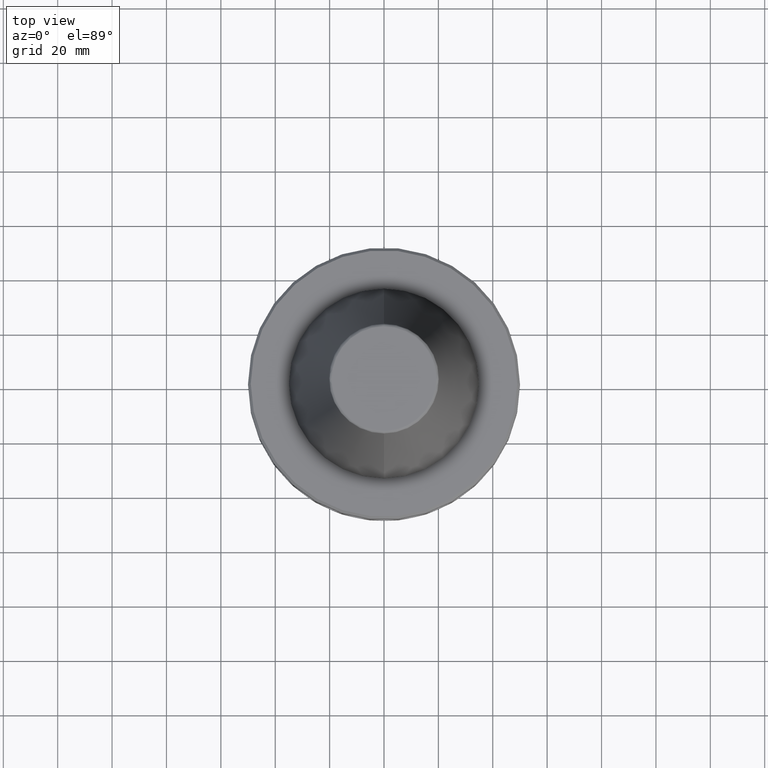
[diagram: clean part render]
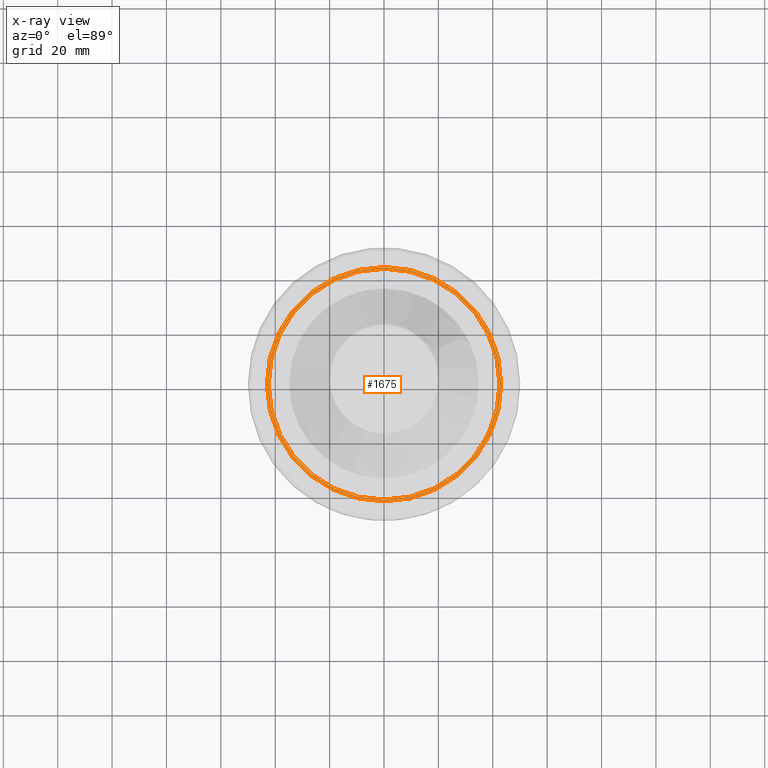
[diagram: x-ray — body ghosted, one internal face saturated and labeled with its STEP entity id]
A machine part, top view, then the same camera in x-ray: the body is ghosted and one INTERNAL B-rep face — a face not visible from any outside direction — is saturated and labeled: STEP entity #1675.
In plain terms, the highlighted planar face has unit normal (0, 0, 1).
Its self-contained STEP definition (entity closure, byte-faithful):
#119 = CARTESIAN_POINT ( 'NONE',  ( 0.0000000000000000000, 43.07217782649103600, -19.70000000000000300 ) ) ;
#258 = ORIENTED_EDGE ( 'NONE', *, *, #2107, .F. ) ;
#272 = CARTESIAN_POINT ( 'NONE',  ( 42.50000000000000000, 0.0000000000000000000, -19.70000000000001000 ) ) ;
#298 = DIRECTION ( 'NONE',  ( 1.000000000000000000, 0.0000000000000000000, 0.0000000000000000000 ) ) ;
#300 = DIRECTION ( 'NONE',  ( 0.0000000000000000000, 0.0000000000000000000, 1.000000000000000000 ) ) ;
#302 = CARTESIAN_POINT ( 'NONE',  ( 0.0000000000000000000, 0.0000000000000000000, -19.70000000000001000 ) ) ;
#315 = DIRECTION ( 'NONE',  ( 1.000000000000000000, 0.0000000000000000000, -0.0000000000000000000 ) ) ;
#673 = VERTEX_POINT ( 'NONE', #2349 ) ;
#836 = CARTESIAN_POINT ( 'NONE',  ( 43.07217782649103600, 0.0000000000000000000, -19.70000000000001000 ) ) ;
#840 = FACE_OUTER_BOUND ( 'NONE', #1923, .T. ) ;
#911 = VERTEX_POINT ( 'NONE', #836 ) ;
#965 = CARTESIAN_POINT ( 'NONE',  ( -43.07217782649103600, 5.699027233244276000E-015, -19.70000000000001000 ) ) ;
#1055 = CIRCLE ( 'NONE', #2473, 43.07217782649103600 ) ;
#1067 = DIRECTION ( 'NONE',  ( 1.000000000000000000, 0.0000000000000000000, 0.0000000000000000000 ) ) ;
#1071 = DIRECTION ( 'NONE',  ( 0.0000000000000000000, 0.0000000000000000000, 1.000000000000000000 ) ) ;
#1075 = CARTESIAN_POINT ( 'NONE',  ( 0.0000000000000000000, 0.0000000000000000000, -19.70000000000001000 ) ) ;
#1291 = EDGE_CURVE ( 'NONE', #911, #2247, #1611, .T. ) ;
#1378 = CIRCLE ( 'NONE', #1405, 42.50000000000000000 ) ;
#1405 = AXIS2_PLACEMENT_3D ( 'NONE', #2345, #1891, #1759 ) ;
#1546 = CIRCLE ( 'NONE', #2553, 42.50000000000000000 ) ;
#1611 = CIRCLE ( 'NONE', #2486, 43.07217782649103600 ) ;
#1670 = EDGE_CURVE ( 'NONE', #673, #2549, #1378, .T. ) ;
#1675 = ADVANCED_FACE ( 'NONE', ( #840, #1944 ), #2396, .F. ) ;
#1759 = DIRECTION ( 'NONE',  ( 1.000000000000000000, 0.0000000000000000000, 0.0000000000000000000 ) ) ;
#1761 = DIRECTION ( 'NONE',  ( 1.000000000000000000, 0.0000000000000000000, 0.0000000000000000000 ) ) ;
#1765 = DIRECTION ( 'NONE',  ( -0.0000000000000000000, -0.0000000000000000000, -1.000000000000000000 ) ) ;
#1770 = CARTESIAN_POINT ( 'NONE',  ( 0.0000000000000000000, 0.0000000000000000000, -19.70000000000001000 ) ) ;
#1826 = EDGE_CURVE ( 'NONE', #2549, #673, #1546, .T. ) ;
#1891 = DIRECTION ( 'NONE',  ( -0.0000000000000000000, -0.0000000000000000000, -1.000000000000000000 ) ) ;
#1923 = EDGE_LOOP ( 'NONE', ( #2429, #258 ) ) ;
#1944 = FACE_BOUND ( 'NONE', #2426, .T. ) ;
#1962 = DIRECTION ( 'NONE',  ( 0.0000000000000000000, 0.0000000000000000000, 1.000000000000000000 ) ) ;
#2029 = AXIS2_PLACEMENT_3D ( 'NONE', #119, #1962, #315 ) ;
#2107 = EDGE_CURVE ( 'NONE', #2247, #911, #1055, .T. ) ;
#2247 = VERTEX_POINT ( 'NONE', #965 ) ;
#2322 = ORIENTED_EDGE ( 'NONE', *, *, #1670, .F. ) ;
#2345 = CARTESIAN_POINT ( 'NONE',  ( 0.0000000000000000000, 0.0000000000000000000, -19.70000000000001000 ) ) ;
#2349 = CARTESIAN_POINT ( 'NONE',  ( -42.50000000000000000, 5.204748896376250900E-015, -19.70000000000001000 ) ) ;
#2372 = ORIENTED_EDGE ( 'NONE', *, *, #1826, .F. ) ;
#2396 = PLANE ( 'NONE',  #2029 ) ;
#2426 = EDGE_LOOP ( 'NONE', ( #2372, #2322 ) ) ;
#2429 = ORIENTED_EDGE ( 'NONE', *, *, #1291, .F. ) ;
#2473 = AXIS2_PLACEMENT_3D ( 'NONE', #1075, #1071, #1067 ) ;
#2486 = AXIS2_PLACEMENT_3D ( 'NONE', #302, #300, #298 ) ;
#2549 = VERTEX_POINT ( 'NONE', #272 ) ;
#2553 = AXIS2_PLACEMENT_3D ( 'NONE', #1770, #1765, #1761 ) ;